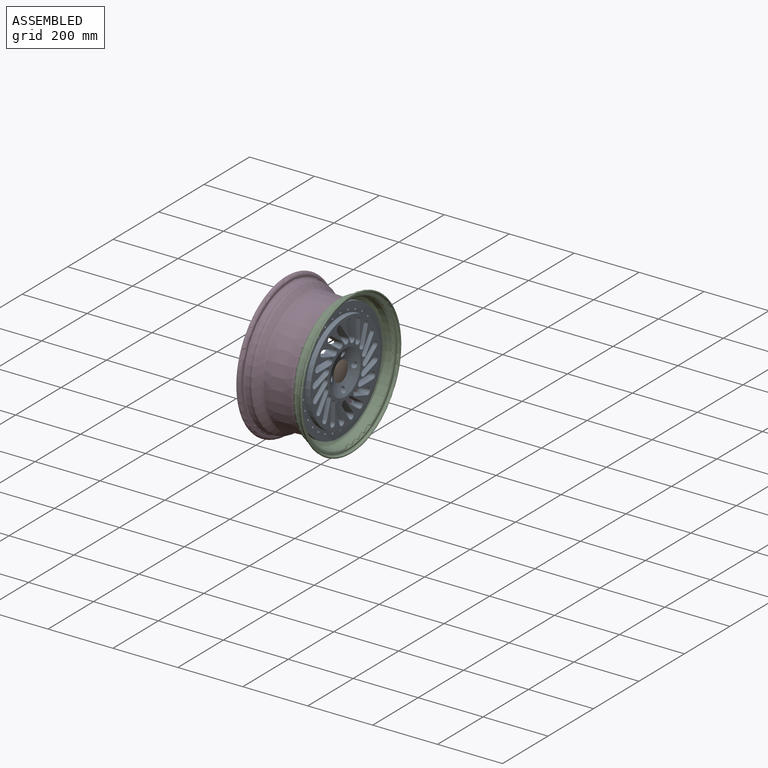
[diagram: assembled view]
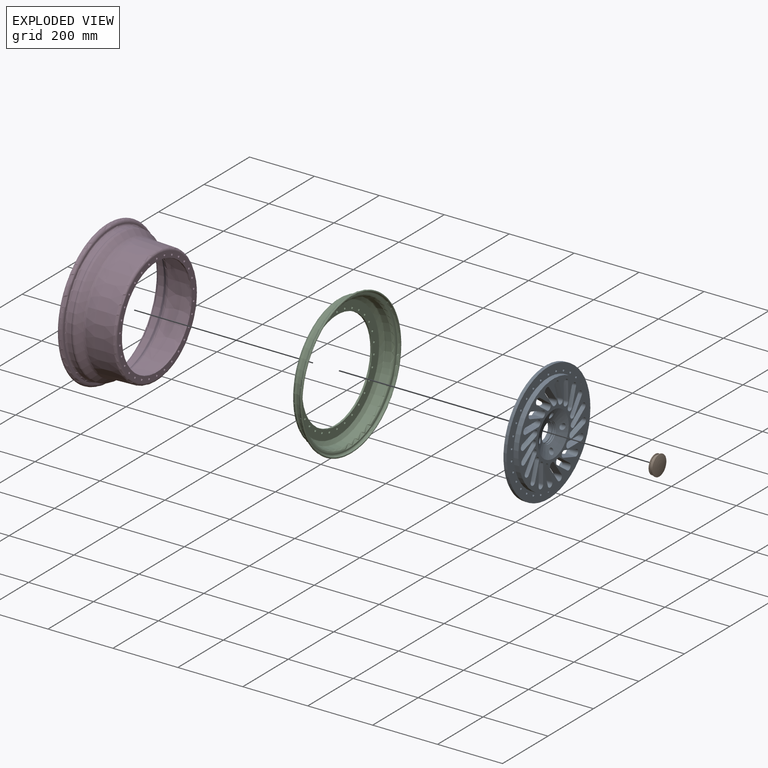
[diagram: exploded view]
GUIDED TOUR — MATED ASSEMBLY (Onshape document 715ae32819b3644ca2091e4a, AutoMate assembly 715ae32819b3644ca2091e4a_433dfd760ce621f5aa87548a_c9251aa22422d4a7e2a0dc15_default)

This assembly has 4 components, labeled P0..P3 below (a component is one placed occurrence of a part; the same part can appear more than once), held together by 3 mates. A mate is a constraint between two components; its type names the relative motion it leaves free:
  CYLINDRICAL — leaves both rotation about and translation along the listed axis free.
Axis/direction vectors are unit vectors and 'through' points are millimeter coordinates, both in the assembly's world frame.

MATES
  1. CYLINDRICAL "Zylindrisch 3": P1 <-> P0, axis (-1.000, 0.000, 0.000) through (801.79, 880.81, 841.87) mm
  2. CYLINDRICAL "Zylindrisch 1": P2 <-> P3, axis (-1.000, 0.000, 0.000) through (788.19, 880.81, 841.87) mm
  3. CYLINDRICAL "Zylindrisch 2": P0 <-> P2, axis (-1.000, 0.000, 0.000) through (793.79, 880.81, 841.87) mm

ASSEMBLY ORDER
  1. P2 — the base component [order verified]
  2. P0 [order verified]
  3. P1 [order verified]
  4. P3 [order verified]
(P0, P1 verified with a relaxed clearance tolerance: the source model stores slight part interference there.)
Order-tag legend:
  [order verified] — this step's position reverses a verified removal order: the component was checked to insert without passing through the ones already placed.

Of the 4 components, 1 carries the full construction recipe — the FeatureScript program that regenerates the part's solid from scratch; the rest are supplied as boundary geometry only.
Each toured component is shown spotlighted twice — in the assembled view, then in the exploded view, where a leader line traces a displaced component back to its assembled socket (saturated green if recipe-attached, orange if geometry-only; every other component desaturated gray) — followed by its recipe or geometry summary and the mates that hold it.
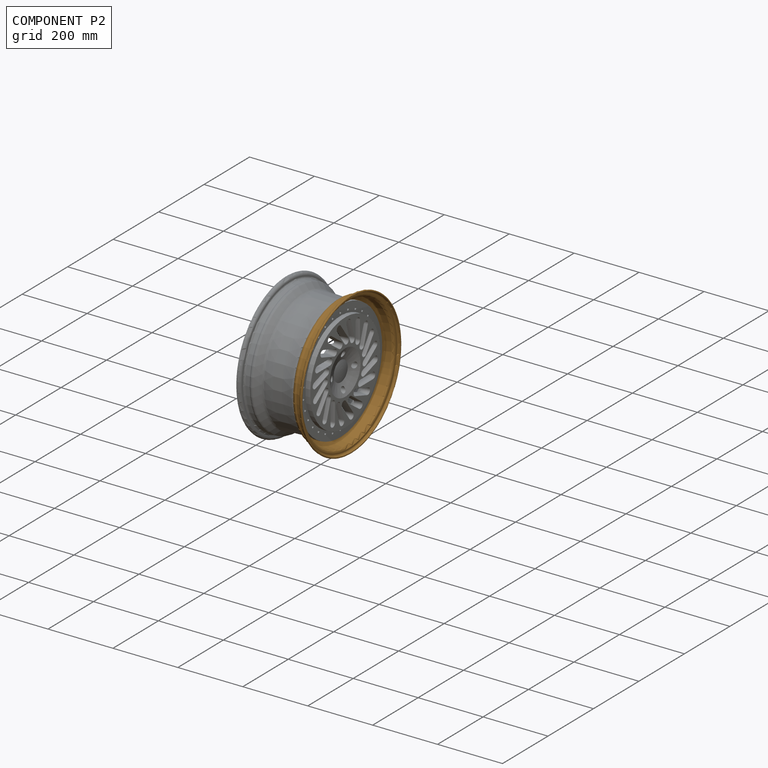
[diagram: component P2 — assembled]
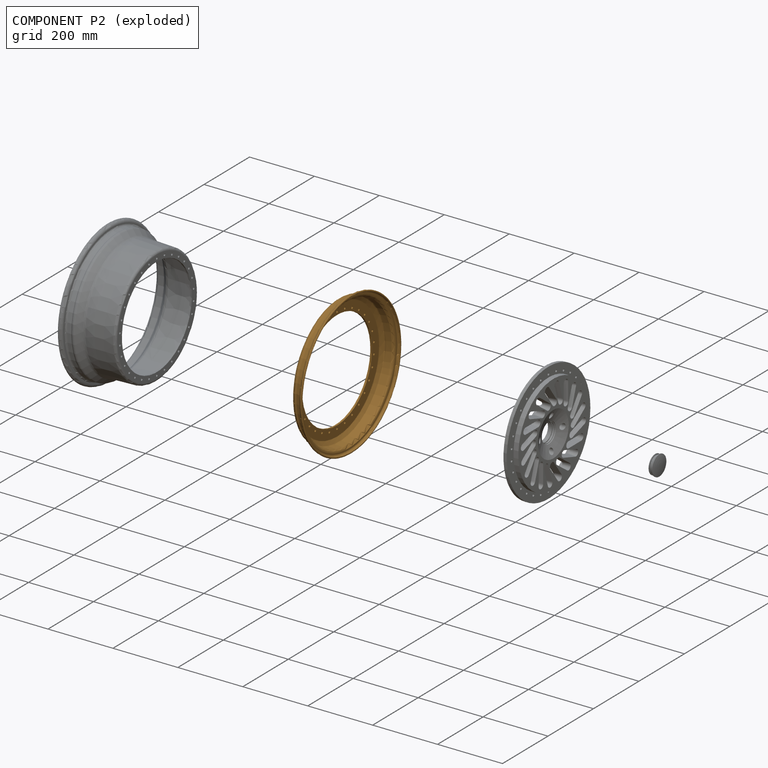
[diagram: component P2 — exploded]
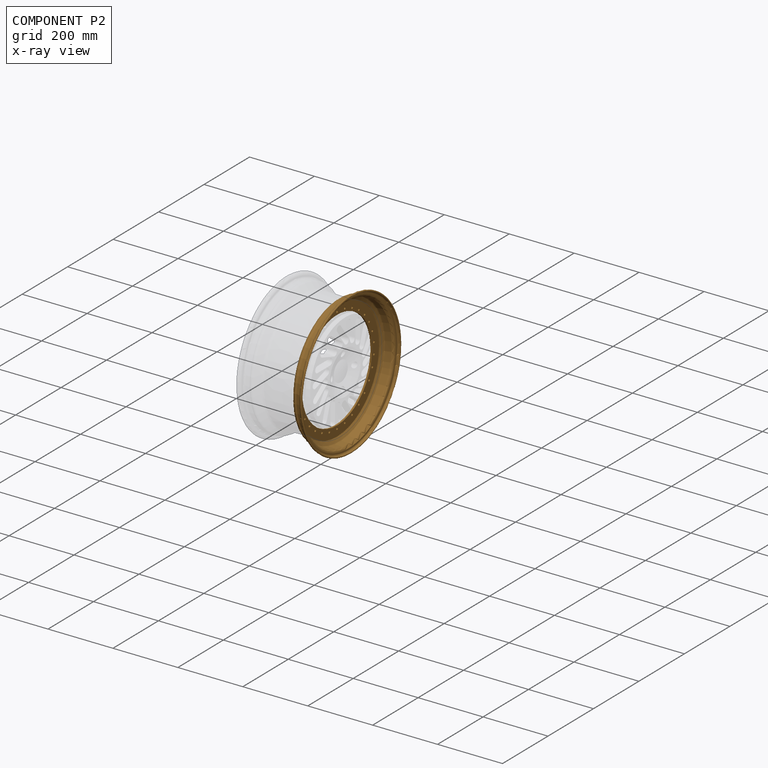
[diagram: component P2 — x-ray view]
COMPONENT P2 — geometry summary (no construction recipe available for this part):
  bounding box: 476.5 x 476.5 x 50.1 mm
  B-rep topology: 1 solid, 66 faces, 384 edges
  volume: 499366 mm^3 (4% of its bounding box)
  symmetry: revolution-symmetric about the x axis through its bounding-box center; mirror-symmetric across its y mid-plane, z mid-plane
Held by: CYLINDRICAL mate "Zylindrisch 1" to P3; CYLINDRICAL mate "Zylindrisch 2" to P0.
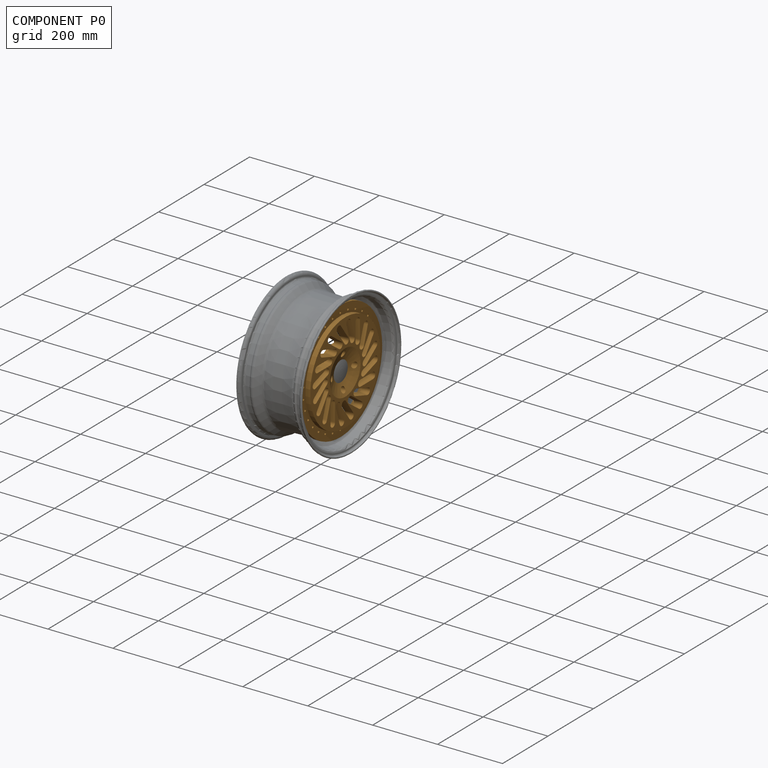
[diagram: component P0 — assembled]
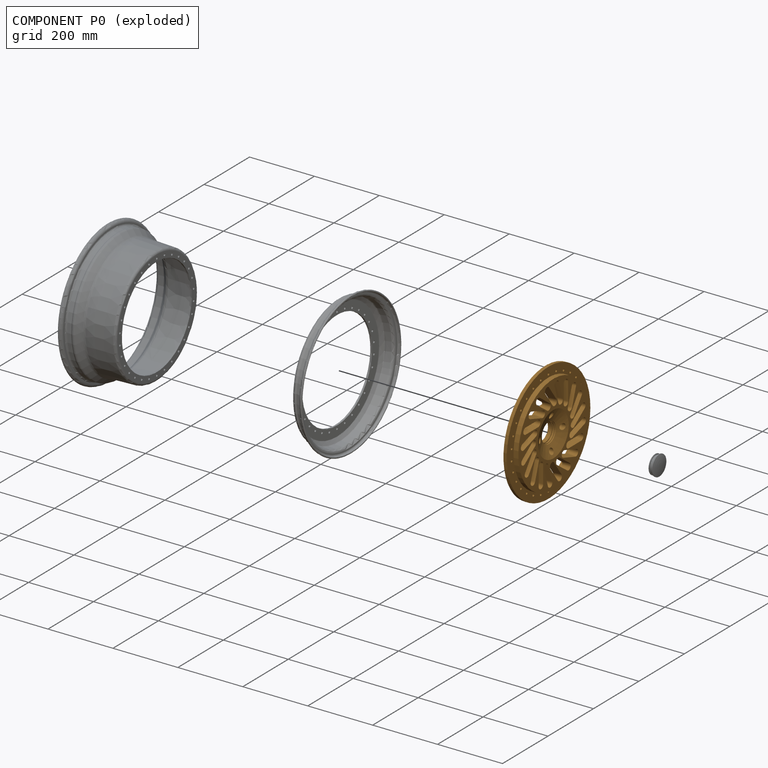
[diagram: component P0 — exploded]
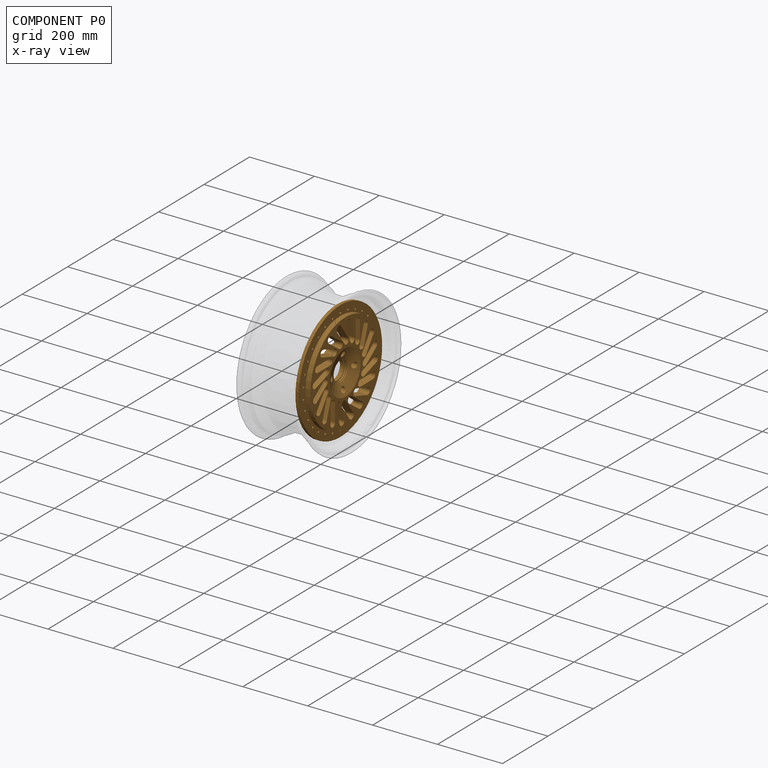
[diagram: component P0 — x-ray view]
COMPONENT P0 — geometry summary (no construction recipe available for this part):
  bounding box: 368.0 x 368.0 x 37.0 mm
  B-rep topology: 1 solid, 144 faces, 858 edges
  volume: 1615777 mm^3 (32% of its bounding box)
  symmetry: 2-fold rotationally symmetric about the y axis
Held by: CYLINDRICAL mate "Zylindrisch 3" to P1; CYLINDRICAL mate "Zylindrisch 2" to P2.
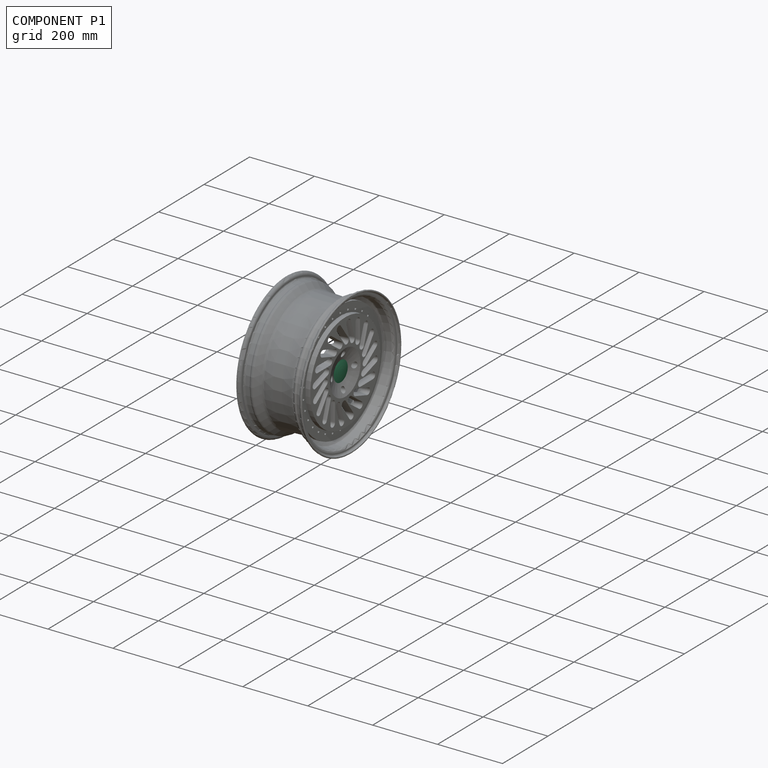
[diagram: component P1 — assembled]
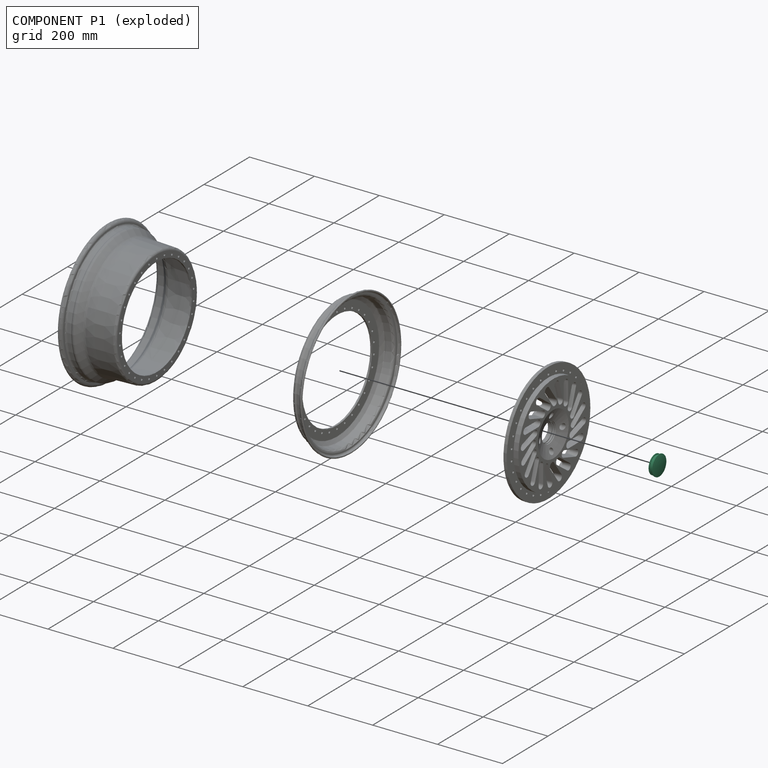
[diagram: component P1 — exploded]
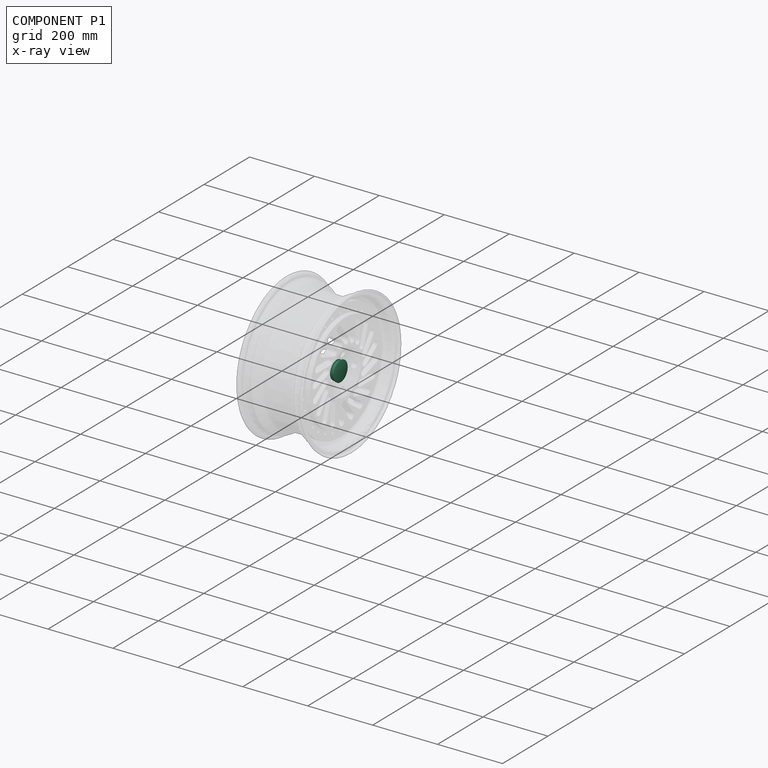
[diagram: component P1 — x-ray view]
COMPONENT P1 — recipe-attached (CADFS 00914188, mesh-verified: the recipe's output STEP matches this component's geometry to below the mesh-comparison resolution (tessellation chordal tolerance ~0.134 mm)).
Held by: CYLINDRICAL mate "Zylindrisch 3" to P0.
Construction recipe (FeatureScript — the CAD program that rebuilds this solid; sketch coordinates are in the units given by the * unit suffixes, e.g. mm):

FeatureScript 1511;
import(path : "onshape/std/geometry.fs", version : "1511.0");
import(path : "onshape/std/common.fs", version : "1511.0");
const mm = millimeter;
const VERTEX = EntityType.VERTEX;
const EDGE = EntityType.EDGE;
const FACE = EntityType.FACE;
const BODY = EntityType.BODY;
function v(x, y){return vector(x, y);}
function OD(order){return orderDisambiguation(order);}
function OSD(set){return originalSetDisambiguation(set);}
function TD(topology){return topologyDisambiguation(topology);}
function TDD(query){return trueDependencyDisambiguation(query);}
function sQuery(a, b, c) {return sketchEntityQuery(a, b, c);}

annotation { "Feature Type Name" : "Feature", "Feature Type Description" : "" }
export const myFeature = defineFeature(function(context is Context, id is Id, definition is map)
    precondition{}
    {
        {
            var Q0;
            Q0=qCreatedBy(makeId("Top.planeOp"),FACE);
            var sketch = newSketch(context, id + "F0", { "sketchPlane" : qUnion([Q0])});
            skLineSegment(sketch, "E0", {"start": v(28.85, 0) * mm, "end": v(28.85, 2.4) * mm});
            skLineSegment(sketch, "E1", {"start": v(28.85, 2.4) * mm, "end": v(26.25, 2.4) * mm});
            skLineSegment(sketch, "E2", {"start": v(26.25, 2.4) * mm, "end": v(26.25, 7.6) * mm});
            skLineSegment(sketch, "E3", {"start": v(26.25, 7.6) * mm, "end": v(28.85, 7.6) * mm});
            skLineSegment(sketch, "E4", {"start": v(0, 0) * mm, "end": v(28.85, 0) * mm});
            skLineSegment(sketch, "E5", {"start": v(28.85, 7.6) * mm, "end": v(28.85, 10) * mm});
            skLineSegment(sketch, "E6", {"start": v(28.85, 10) * mm, "end": v(30, 10) * mm});
            skLineSegment(sketch, "E7", {"start": v(31, 11) * mm, "end": v(31, 13) * mm});
            skPoint(sketch, "E8.visualSharp", {"position": v(31, 10) * mm});
            skArc(sketch, "E8.filletArc", {"start": v(30, 10) * mm, "mid": v(30.7, 10.3) * mm, "end": v(31, 11) * mm});
            skArc(sketch, "E9", {"start": v(31, 13) * mm, "mid": v(15.58, 15.43) * mm, "end": v(0, 16.24) * mm});
            skPoint(sketch, "E9.third.point", {"position": v(0, -283.76) * mm});
            skLineSegment(sketch, "E10", {"start": v(0, 16.24) * mm, "end": v(0, 0) * mm});
            skSolve(sketch);
        }
        {
            var Q0;
            Q0=makeQuery(id+"F0.imprint","IMPRINT",FACE,{"disambiguationData":[TD([[makeQuery(id+"F0.imprint","IMPRINT",EDGE,{"derivedFrom":sQuery(id+"F0.wireOp",EDGE,"E0")}),1.0]])]});
            var Q1;
            Q1=sQuery(id+"F0.wireOp",EDGE,"E9");
            var Q2;
            Q2=sQuery(id+"F0.wireOp",EDGE,"E7");
            var Q3;
            Q3=sQuery(id+"F0.wireOp",EDGE,"E8.filletArc");
            var Q4;
            Q4=sQuery(id+"F0.wireOp",EDGE,"E6");
            var Q5;
            Q5=sQuery(id+"F0.wireOp",EDGE,"E5");
            var Q6;
            Q6=sQuery(id+"F0.wireOp",EDGE,"E3");
            var Q7;
            Q7=sQuery(id+"F0.wireOp",EDGE,"E2");
            var Q8;
            Q8=sQuery(id+"F0.wireOp",EDGE,"E1");
            var Q9;
            Q9=sQuery(id+"F0.wireOp",EDGE,"E0");
            var Q10;
            Q10=sQuery(id+"F0.wireOp",EDGE,"E4");
            var Q11;
            Q11=sQuery(id+"F0.wireOp",EDGE,"E10");
            revolve(context, id + "F1", {"surfaceOperationType" : NewSurfaceOperationType.NEW, "entities" : qUnion([Q0]), "surfaceEntities" : qUnion([Q1, Q2, Q3, Q4, Q5, Q6, Q7, Q8, Q9, Q10]), "axis" : qUnion([Q11]), "revolveType" : RevolveType.FULL});
        }
    });
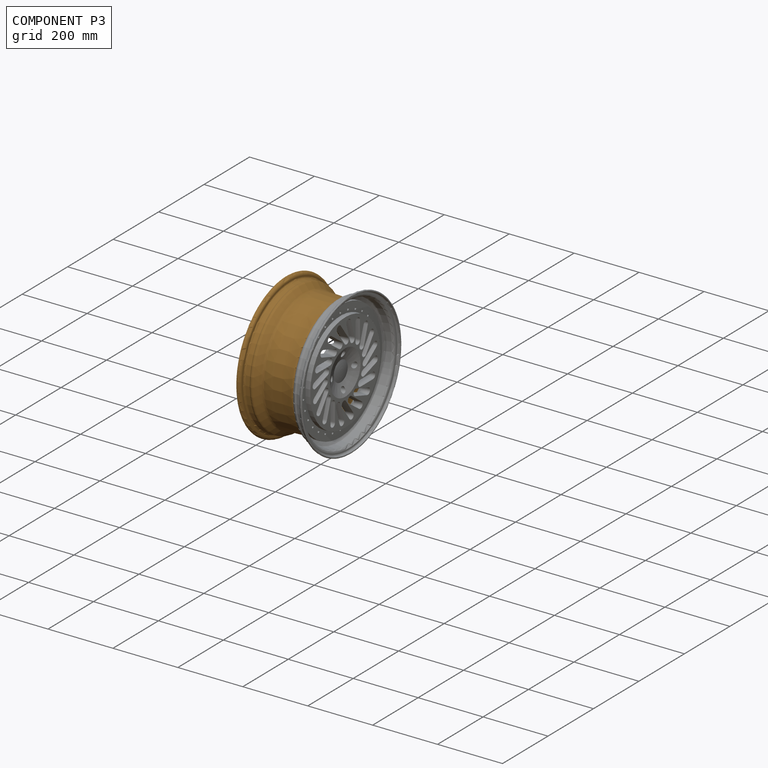
[diagram: component P3 — assembled]
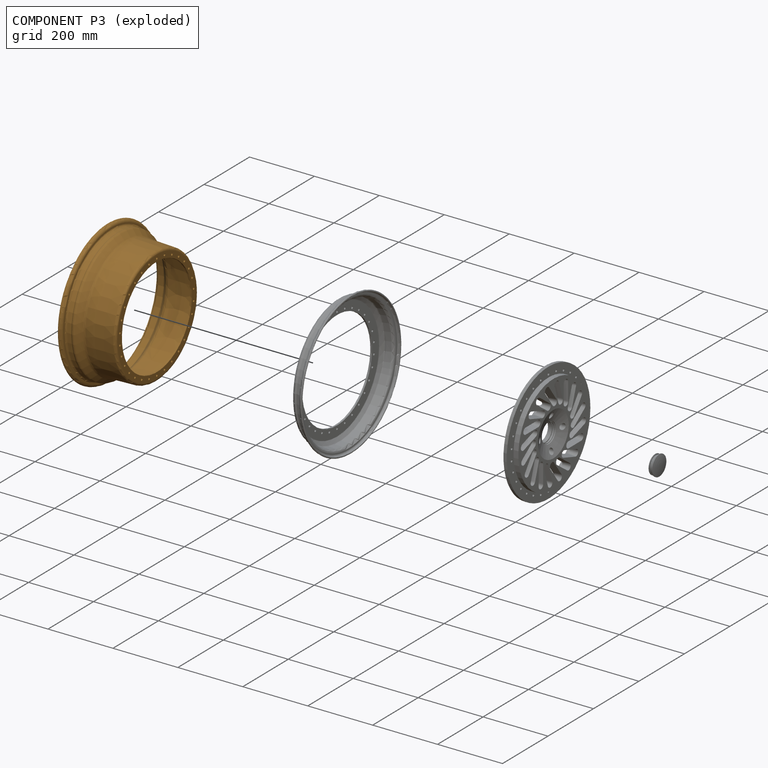
[diagram: component P3 — exploded]
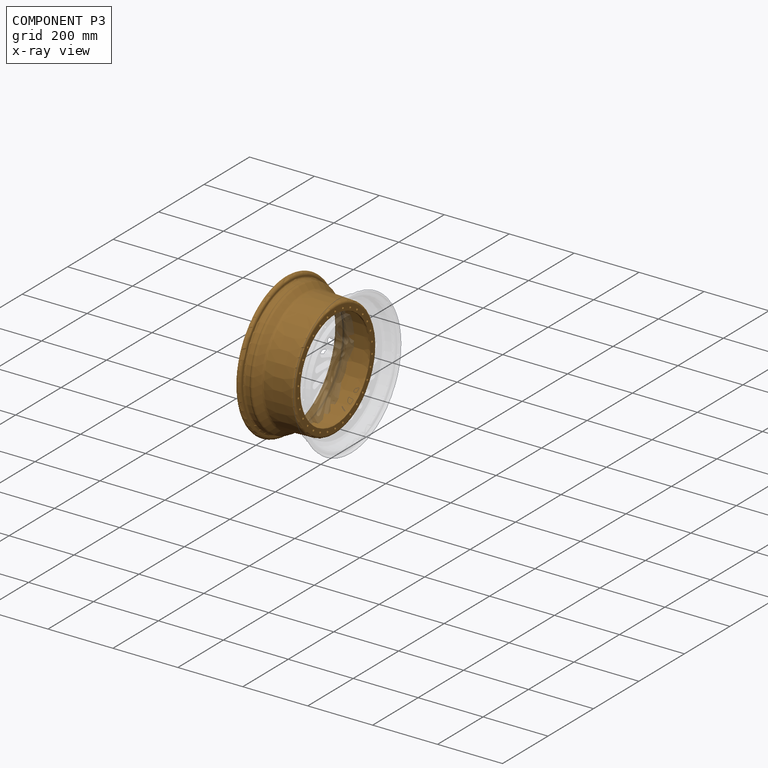
[diagram: component P3 — x-ray view]
COMPONENT P3 — geometry summary (no construction recipe available for this part):
  bounding box: 476.5 x 476.5 x 151.7 mm
  B-rep topology: 1 solid, 76 faces, 424 edges
  volume: 943374 mm^3 (3% of its bounding box)
  symmetry: revolution-symmetric about the x axis through its bounding-box center; mirror-symmetric across its y mid-plane, z mid-plane
Held by: CYLINDRICAL mate "Zylindrisch 1" to P2.
PROVENANCE & LICENSES
Assembly (occurrences, transforms, mates, per-part STEP geometry): AutoMate dataset, Zenodo record 7776208, CC0.
Construction recipes: CADFS (HuggingFace VladPyatov/CADFS, CC-BY-4.0, layered over the ABC dataset), FeatureScript reconstruction programs keyed by ABC model id.
Join: ABC meta listings map ABC model id -> Onshape documentId; within a shared document, parts are matched by geometric signature (bounding-box dims + volume at 0.1% relative tolerance, exact B-rep face/solid counts).
Verification: 1 of this assembly's 4 components carries a recipe attachment, and every attachment is mesh-verified: the CADFS STEP and the AutoMate member STEP were compared as meshes in their shared local frame (symmetric sampled-point-to-mesh distance); worst across the 1 attachment: below the mesh-comparison resolution (tessellation chordal tolerance ~0.134 mm) on a 89 mm part.
Renders: orthographic iso camera (az 35 / el 25); the floor grid conveys scale (grid pitch printed in each image; no ruler). In the exploded view each component is displaced by its stored offset vector: the offsets alone carry the explosion direction (mate normal/axis signs are not orientation cues and do not encode it), and separation distances are assigned per mate-chain, not proportionally to assembly-order depth.
